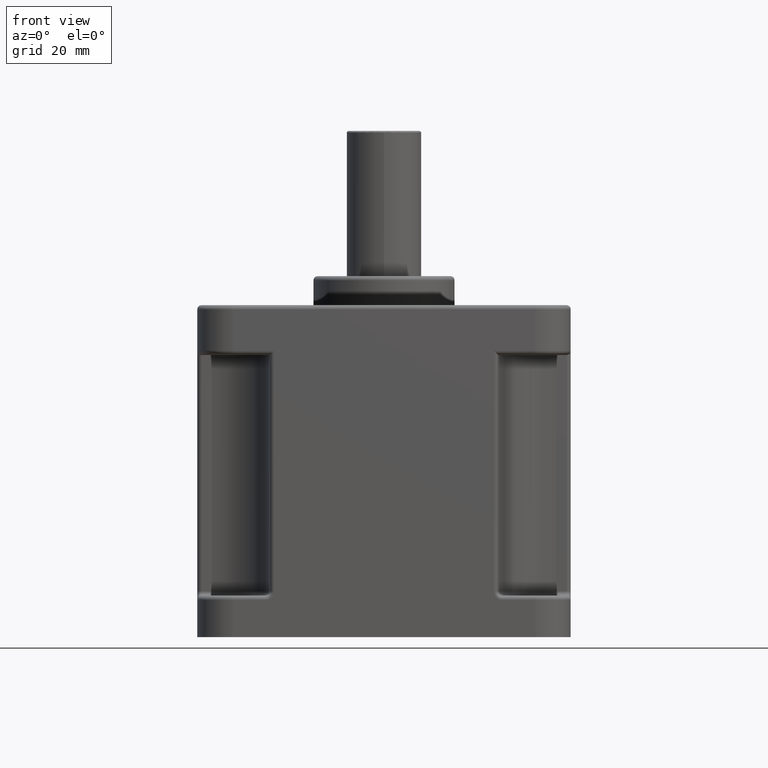
[diagram: clean part render]
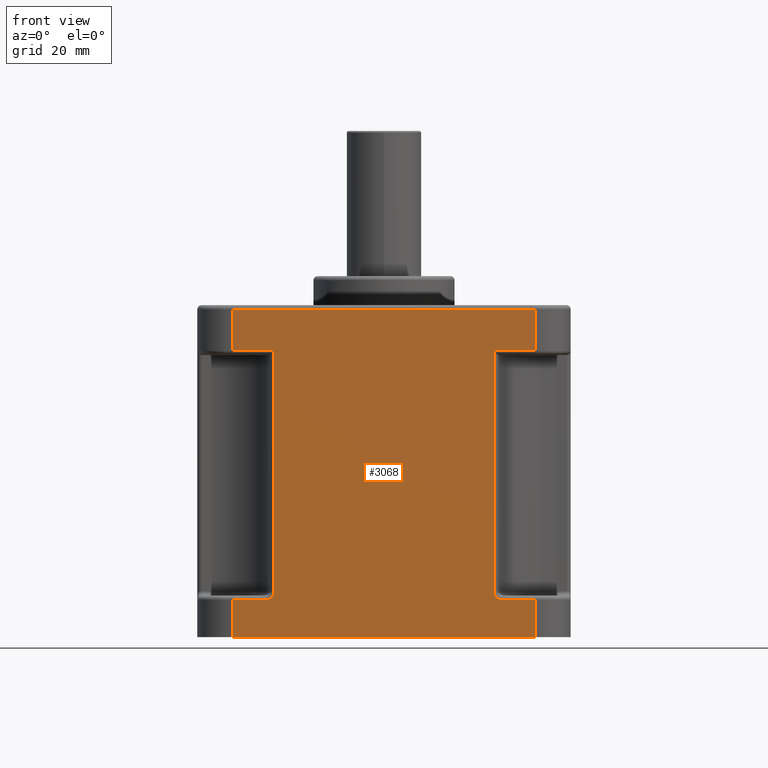
[diagram: same view with one face highlighted and labeled with its STEP entity id]
A machine part, front view. The second image highlights one B-rep face of the part: STEP entity #3068.
In plain terms, the highlighted planar face has unit normal (-0, 1, -0).
Its self-contained STEP definition (entity closure, byte-faithful):
#3003 = VERTEX_POINT ( 'NONE', #5904 ) ;
#3008 = VERTEX_POINT ( 'NONE', #5939 ) ;
#3027 = ORIENTED_EDGE ( 'NONE', *, *, #3085, .T. ) ;
#3029 = VERTEX_POINT ( 'NONE', #5975 ) ;
#3037 = EDGE_LOOP ( 'NONE', ( #3060, #3043, #3027, #3048, #3092, #3081, #3104, #3088, #3078, #3095, #3111, #3105, #3106, #3112 ) ) ;
#3043 = ORIENTED_EDGE ( 'NONE', *, *, #3101, .T. ) ;
#3044 = VERTEX_POINT ( 'NONE', #5955 ) ;
#3046 = VERTEX_POINT ( 'NONE', #5982 ) ;
#3048 = ORIENTED_EDGE ( 'NONE', *, *, #3091, .F. ) ;
#3057 = VERTEX_POINT ( 'NONE', #6039 ) ;
#3060 = ORIENTED_EDGE ( 'NONE', *, *, #3103, .F. ) ;
#3063 = VERTEX_POINT ( 'NONE', #6040 ) ;
#3068 = ADVANCED_FACE ( 'NONE', ( #5983 ), #6030, .F. ) ;
#3070 = VERTEX_POINT ( 'NONE', #6033 ) ;
#3078 = ORIENTED_EDGE ( 'NONE', *, *, #3100, .F. ) ;
#3079 = EDGE_CURVE ( 'NONE', #3093, #3089, #6026, .T. ) ;
#3080 = VERTEX_POINT ( 'NONE', #6024 ) ;
#3081 = ORIENTED_EDGE ( 'NONE', *, *, #3098, .T. ) ;
#3082 = EDGE_CURVE ( 'NONE', #3008, #3113, #6015, .T. ) ;
#3083 = VERTEX_POINT ( 'NONE', #6067 ) ;
#3085 = EDGE_CURVE ( 'NONE', #3083, #3057, #6064, .T. ) ;
#3088 = ORIENTED_EDGE ( 'NONE', *, *, #3102, .T. ) ;
#3089 = VERTEX_POINT ( 'NONE', #6021 ) ;
#3091 = EDGE_CURVE ( 'NONE', #3063, #3057, #6016, .T. ) ;
#3092 = ORIENTED_EDGE ( 'NONE', *, *, #3094, .T. ) ;
#3093 = VERTEX_POINT ( 'NONE', #6068 ) ;
#3094 = EDGE_CURVE ( 'NONE', #3063, #3046, #6051, .T. ) ;
#3095 = ORIENTED_EDGE ( 'NONE', *, *, #3082, .T. ) ;
#3098 = EDGE_CURVE ( 'NONE', #3046, #3093, #6096, .T. ) ;
#3100 = EDGE_CURVE ( 'NONE', #3008, #3080, #6094, .T. ) ;
#3101 = EDGE_CURVE ( 'NONE', #3029, #3083, #6085, .T. ) ;
#3102 = EDGE_CURVE ( 'NONE', #3089, #3080, #6078, .T. ) ;
#3103 = EDGE_CURVE ( 'NONE', #3029, #3044, #6074, .T. ) ;
#3104 = ORIENTED_EDGE ( 'NONE', *, *, #3079, .T. ) ;
#3105 = ORIENTED_EDGE ( 'NONE', *, *, #3115, .F. ) ;
#3106 = ORIENTED_EDGE ( 'NONE', *, *, #3114, .T. ) ;
#3108 = EDGE_CURVE ( 'NONE', #3113, #3110, #6131, .T. ) ;
#3110 = VERTEX_POINT ( 'NONE', #6090 ) ;
#3111 = ORIENTED_EDGE ( 'NONE', *, *, #3108, .T. ) ;
#3112 = ORIENTED_EDGE ( 'NONE', *, *, #3116, .F. ) ;
#3113 = VERTEX_POINT ( 'NONE', #6062 ) ;
#3114 = EDGE_CURVE ( 'NONE', #3070, #3003, #6124, .T. ) ;
#3115 = EDGE_CURVE ( 'NONE', #3070, #3110, #6125, .T. ) ;
#3116 = EDGE_CURVE ( 'NONE', #3044, #3003, #6127, .T. ) ;
#5904 = CARTESIAN_POINT ( 'NONE',  ( 36.49999999999990800, -45.00000000000001400, 71.00000000000000000 ) ) ;
#5939 = CARTESIAN_POINT ( 'NONE',  ( 36.49999999999990800, -45.00000000000001400, 10.99999999999999600 ) ) ;
#5955 = CARTESIAN_POINT ( 'NONE',  ( 36.49999999999990100, -45.00000000000001400, 80.00000000000000000 ) ) ;
#5975 = CARTESIAN_POINT ( 'NONE',  ( -36.49999999999997900, -45.00000000000001400, 80.00000000000000000 ) ) ;
#5982 = CARTESIAN_POINT ( 'NONE',  ( -26.50000000000049000, -45.00000000000001400, 10.99999999999998900 ) ) ;
#5983 = FACE_OUTER_BOUND ( 'NONE', #3037, .T. ) ;
#6014 = CARTESIAN_POINT ( 'NONE',  ( 27.49999999999986900, -45.00000000000001400, 10.99999999999998900 ) ) ;
#6015 = LINE ( 'NONE', #6014, #6066 ) ;
#6016 = CIRCLE ( 'NONE', #6054, 2.000000000000001800 ) ;
#6017 = CARTESIAN_POINT ( 'NONE',  ( -36.49999999999997200, -45.00000000000001400, 80.29999999999999700 ) ) ;
#6021 = CARTESIAN_POINT ( 'NONE',  ( -36.49999999999997200, -45.00000000000001400, 1.000000000000000900 ) ) ;
#6022 = DIRECTION ( 'NONE',  ( 0.0000000000000000000, -0.0000000000000000000, 1.000000000000000000 ) ) ;
#6023 = DIRECTION ( 'NONE',  ( 0.0000000000000000000, 1.000000000000000000, 0.0000000000000000000 ) ) ;
#6024 = CARTESIAN_POINT ( 'NONE',  ( 36.49999999999990800, -45.00000000000001400, 1.000000000000000900 ) ) ;
#6026 = LINE ( 'NONE', #6017, #6070 ) ;
#6029 = CARTESIAN_POINT ( 'NONE',  ( -2.733349261721706100E-014, -45.00000000000001400, 80.29999999999999700 ) ) ;
#6030 = PLANE ( 'NONE',  #6035 ) ;
#6033 = CARTESIAN_POINT ( 'NONE',  ( 28.49999999999987600, -45.00000000000001400, 71.00000000000000000 ) ) ;
#6035 = AXIS2_PLACEMENT_3D ( 'NONE', #6029, #6023, #6022 ) ;
#6039 = CARTESIAN_POINT ( 'NONE',  ( -28.50000000000049400, -45.00000000000001400, 71.00000000000000000 ) ) ;
#6040 = CARTESIAN_POINT ( 'NONE',  ( -26.50000000000049000, -45.00000000000001400, 68.99999999999998600 ) ) ;
#6048 = DIRECTION ( 'NONE',  ( 0.0000000000000000000, 0.0000000000000000000, -1.000000000000000000 ) ) ;
#6049 = VECTOR ( 'NONE', #6048, 1000.000000000000000 ) ;
#6050 = CARTESIAN_POINT ( 'NONE',  ( -26.50000000000049000, -45.00000000000001400, 80.29999999999999700 ) ) ;
#6051 = LINE ( 'NONE', #6050, #6049 ) ;
#6052 = DIRECTION ( 'NONE',  ( 0.0000000000000000000, 0.0000000000000000000, 1.000000000000000000 ) ) ;
#6053 = DIRECTION ( 'NONE',  ( -0.0000000000000000000, -1.000000000000000000, -0.0000000000000000000 ) ) ;
#6054 = AXIS2_PLACEMENT_3D ( 'NONE', #6055, #6053, #6052 ) ;
#6055 = CARTESIAN_POINT ( 'NONE',  ( -28.50000000000049400, -45.00000000000001400, 68.99999999999998600 ) ) ;
#6060 = DIRECTION ( 'NONE',  ( 1.000000000000000000, 0.0000000000000000000, 0.0000000000000000000 ) ) ;
#6061 = VECTOR ( 'NONE', #6060, 1000.000000000000000 ) ;
#6062 = CARTESIAN_POINT ( 'NONE',  ( 26.49999999999987600, -45.00000000000001400, 10.99999999999998900 ) ) ;
#6063 = CARTESIAN_POINT ( 'NONE',  ( -2.733349261721706100E-014, -45.00000000000001400, 71.00000000000000000 ) ) ;
#6064 = LINE ( 'NONE', #6063, #6061 ) ;
#6065 = DIRECTION ( 'NONE',  ( -1.000000000000000000, 0.0000000000000000000, -0.0000000000000000000 ) ) ;
#6066 = VECTOR ( 'NONE', #6065, 1000.000000000000000 ) ;
#6067 = CARTESIAN_POINT ( 'NONE',  ( -36.49999999999997200, -45.00000000000001400, 71.00000000000000000 ) ) ;
#6068 = CARTESIAN_POINT ( 'NONE',  ( -36.49999999999997200, -45.00000000000001400, 10.99999999999999600 ) ) ;
#6069 = DIRECTION ( 'NONE',  ( -0.0000000000000000000, -0.0000000000000000000, -1.000000000000000000 ) ) ;
#6070 = VECTOR ( 'NONE', #6069, 1000.000000000000000 ) ;
#6071 = DIRECTION ( 'NONE',  ( 1.000000000000000000, 0.0000000000000000000, 0.0000000000000000000 ) ) ;
#6072 = VECTOR ( 'NONE', #6071, 1000.000000000000000 ) ;
#6073 = CARTESIAN_POINT ( 'NONE',  ( -36.49999999999997900, -45.00000000000001400, 80.00000000000000000 ) ) ;
#6074 = LINE ( 'NONE', #6073, #6072 ) ;
#6075 = DIRECTION ( 'NONE',  ( 1.000000000000000000, -0.0000000000000000000, 0.0000000000000000000 ) ) ;
#6076 = VECTOR ( 'NONE', #6075, 1000.000000000000000 ) ;
#6077 = CARTESIAN_POINT ( 'NONE',  ( -2.733349261721706100E-014, -45.00000000000001400, 1.000000000000000900 ) ) ;
#6078 = LINE ( 'NONE', #6077, #6076 ) ;
#6079 = DIRECTION ( 'NONE',  ( -0.0000000000000000000, -0.0000000000000000000, -1.000000000000000000 ) ) ;
#6080 = VECTOR ( 'NONE', #6079, 1000.000000000000000 ) ;
#6081 = CARTESIAN_POINT ( 'NONE',  ( -36.49999999999997200, -45.00000000000001400, 80.29999999999999700 ) ) ;
#6082 = AXIS2_PLACEMENT_3D ( 'NONE', #6122, #6118, #6117 ) ;
#6083 = DIRECTION ( 'NONE',  ( -0.0000000000000000000, -0.0000000000000000000, -1.000000000000000000 ) ) ;
#6084 = VECTOR ( 'NONE', #6083, 1000.000000000000000 ) ;
#6085 = LINE ( 'NONE', #6081, #6080 ) ;
#6088 = CARTESIAN_POINT ( 'NONE',  ( 36.49999999999990800, -45.00000000000001400, 80.29999999999999700 ) ) ;
#6090 = CARTESIAN_POINT ( 'NONE',  ( 26.49999999999987600, -45.00000000000001400, 68.99999999999998600 ) ) ;
#6092 = DIRECTION ( 'NONE',  ( -1.000000000000000000, 0.0000000000000000000, -0.0000000000000000000 ) ) ;
#6093 = VECTOR ( 'NONE', #6092, 1000.000000000000000 ) ;
#6094 = LINE ( 'NONE', #6088, #6084 ) ;
#6095 = CARTESIAN_POINT ( 'NONE',  ( -36.49999999999997200, -45.00000000000001400, 10.99999999999998900 ) ) ;
#6096 = LINE ( 'NONE', #6095, #6093 ) ;
#6111 = DIRECTION ( 'NONE',  ( -0.0000000000000000000, -0.0000000000000000000, -1.000000000000000000 ) ) ;
#6112 = VECTOR ( 'NONE', #6111, 1000.000000000000000 ) ;
#6117 = DIRECTION ( 'NONE',  ( 0.0000000000000000000, 0.0000000000000000000, 1.000000000000000000 ) ) ;
#6118 = DIRECTION ( 'NONE',  ( -0.0000000000000000000, -1.000000000000000000, -0.0000000000000000000 ) ) ;
#6119 = DIRECTION ( 'NONE',  ( 1.000000000000000000, 0.0000000000000000000, 0.0000000000000000000 ) ) ;
#6120 = VECTOR ( 'NONE', #6119, 1000.000000000000000 ) ;
#6121 = CARTESIAN_POINT ( 'NONE',  ( -2.733349261721706100E-014, -45.00000000000001400, 71.00000000000000000 ) ) ;
#6122 = CARTESIAN_POINT ( 'NONE',  ( 28.49999999999987600, -45.00000000000001400, 68.99999999999998600 ) ) ;
#6124 = LINE ( 'NONE', #6121, #6120 ) ;
#6125 = CIRCLE ( 'NONE', #6082, 2.000000000000001800 ) ;
#6126 = CARTESIAN_POINT ( 'NONE',  ( 36.49999999999990800, -45.00000000000001400, 80.29999999999999700 ) ) ;
#6127 = LINE ( 'NONE', #6126, #6112 ) ;
#6128 = DIRECTION ( 'NONE',  ( 0.0000000000000000000, -0.0000000000000000000, 1.000000000000000000 ) ) ;
#6129 = VECTOR ( 'NONE', #6128, 1000.000000000000000 ) ;
#6130 = CARTESIAN_POINT ( 'NONE',  ( 26.49999999999987600, -45.00000000000001400, 80.29999999999999700 ) ) ;
#6131 = LINE ( 'NONE', #6130, #6129 ) ;